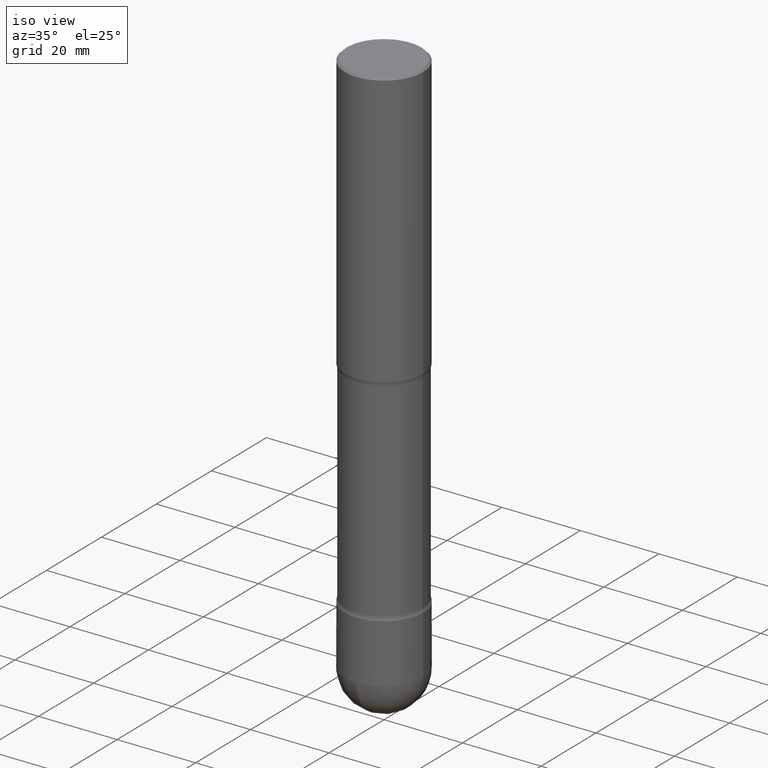
[diagram: clean part render]
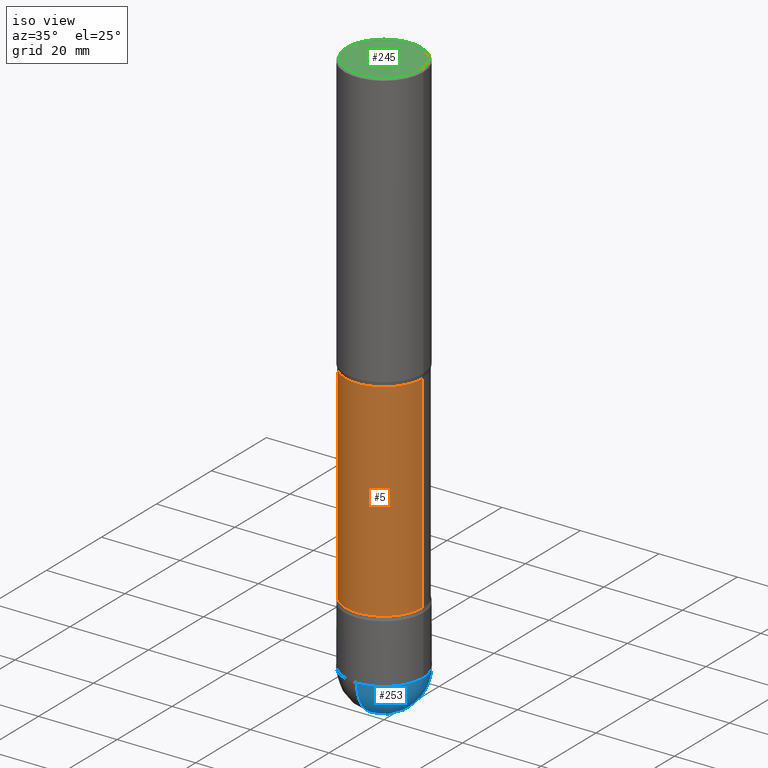
[diagram: same view with three faces highlighted in distinct colors, each labeled with its STEP entity id]
A machine part, iso view with three faces highlighted in distinct colors.
Their STEP definitions:

[orange] entity #5 — the highlighted cylindrical surface (partial cylindrical patch) has radius 9.8095 mm, axis along (0, -0, -1).
#5 = ADVANCED_FACE ( 'NONE', ( #476 ), #163, .T. ) ;
#28 = DIRECTION ( 'NONE',  ( 2.445468806185136597E-29, -3.491481338843145583E-15, -1.000000000000000000 ) ) ;
#40 = CARTESIAN_POINT ( 'NONE',  ( 0.3861999999999992661, -1.237187487833494687E-14, -2.798546805273079308 ) ) ;
#41 = VERTEX_POINT ( 'NONE', #352 ) ;
#67 = EDGE_CURVE ( 'NONE', #510, #41, #311, .T. ) ;
#91 = CARTESIAN_POINT ( 'NONE',  ( -0.3861999999999994326, -1.448545777859245492E-14, -4.921199999999999797 ) ) ;
#114 = CARTESIAN_POINT ( 'NONE',  ( 6.843758914944385400E-29, -9.771073946490059360E-15, -2.798546805273079308 ) ) ;
#120 = AXIS2_PLACEMENT_3D ( 'NONE', #382, #469, #509 ) ;
#122 = CIRCLE ( 'NONE', #191, 0.3861999999999995437 ) ;
#143 = CARTESIAN_POINT ( 'NONE',  ( 1.193034965701952550E-28, -1.703337743994265175E-14, -4.878553194726920061 ) ) ;
#150 = VECTOR ( 'NONE', #361, 39.37007874015748143 ) ;
#163 = CYLINDRICAL_SURFACE ( 'NONE', #120, 0.3861999999999994326 ) ;
#184 = VERTEX_POINT ( 'NONE', #416 ) ;
#187 = ORIENTED_EDGE ( 'NONE', *, *, #195, .T. ) ;
#191 = AXIS2_PLACEMENT_3D ( 'NONE', #143, #224, #450 ) ;
#195 = EDGE_CURVE ( 'NONE', #480, #510, #338, .T. ) ;
#202 = ORIENTED_EDGE ( 'NONE', *, *, #67, .T. ) ;
#223 = DIRECTION ( 'NONE',  ( 2.445468806185136877E-29, -3.491481338843145188E-15, -1.000000000000000000 ) ) ;
#224 = DIRECTION ( 'NONE',  ( 2.445468806185136597E-29, -3.491481338843145583E-15, -1.000000000000000000 ) ) ;
#256 = EDGE_LOOP ( 'NONE', ( #502, #187, #202, #549 ) ) ;
#311 = LINE ( 'NONE', #91, #410 ) ;
#317 = CARTESIAN_POINT ( 'NONE',  ( -0.3861999999999992661, -7.074253760367627561E-15, -2.798546805273079308 ) ) ;
#338 = CIRCLE ( 'NONE', #551, 0.3861999999999992661 ) ;
#352 = CARTESIAN_POINT ( 'NONE',  ( -0.3861999999999995437, -1.433655725382021838E-14, -4.878553194726920061 ) ) ;
#361 = DIRECTION ( 'NONE',  ( 2.445468806185136877E-29, -3.491481338843145188E-15, -1.000000000000000000 ) ) ;
#382 = CARTESIAN_POINT ( 'NONE',  ( 1.203464108899829379E-28, -1.718227796471488830E-14, -4.921199999999999797 ) ) ;
#410 = VECTOR ( 'NONE', #223, 39.37007874015748143 ) ;
#416 = CARTESIAN_POINT ( 'NONE',  ( 0.3861999999999995992, -1.605175001995571863E-14, -4.878553194726920061 ) ) ;
#434 = DIRECTION ( 'NONE',  ( -1.000000000000000000, 6.982962677686266711E-15, 0.000000000000000000 ) ) ;
#442 = EDGE_CURVE ( 'NONE', #184, #41, #122, .T. ) ;
#446 = CARTESIAN_POINT ( 'NONE',  ( 0.3861999999999994326, -1.983180229145424743E-14, -4.921199999999999797 ) ) ;
#450 = DIRECTION ( 'NONE',  ( -1.000000000000000000, 6.982962677686269866E-15, 0.000000000000000000 ) ) ;
#469 = DIRECTION ( 'NONE',  ( 2.445468806185136597E-29, -3.491481338843145583E-15, -1.000000000000000000 ) ) ;
#476 = FACE_OUTER_BOUND ( 'NONE', #256, .T. ) ;
#480 = VERTEX_POINT ( 'NONE', #40 ) ;
#493 = LINE ( 'NONE', #446, #150 ) ;
#502 = ORIENTED_EDGE ( 'NONE', *, *, #540, .F. ) ;
#509 = DIRECTION ( 'NONE',  ( -1.000000000000000000, 6.982962677686266711E-15, 0.000000000000000000 ) ) ;
#510 = VERTEX_POINT ( 'NONE', #317 ) ;
#540 = EDGE_CURVE ( 'NONE', #480, #184, #493, .T. ) ;
#549 = ORIENTED_EDGE ( 'NONE', *, *, #442, .F. ) ;
#551 = AXIS2_PLACEMENT_3D ( 'NONE', #114, #28, #434 ) ;

[blue] entity #253 — the highlighted spherical surface has radius 10 mm.
#6 = CARTESIAN_POINT ( 'NONE',  ( 1.344526706912624446E-28, -1.929256118791808272E-14, -5.511800000000000033 ) ) ;
#13 = FACE_OUTER_BOUND ( 'NONE', #243, .T. ) ;
#35 = VERTEX_POINT ( 'NONE', #94 ) ;
#63 = DIRECTION ( 'NONE',  ( -1.000000000000000000, 6.982962677686265133E-15, -4.883557194083111780E-29 ) ) ;
#65 = DIRECTION ( 'NONE',  ( 1.000000000000000000, -6.982962677686266711E-15, 0.000000000000000000 ) ) ;
#66 = CIRCLE ( 'NONE', #149, 0.3936999999999993838 ) ;
#72 = ORIENTED_EDGE ( 'NONE', *, *, #81, .F. ) ;
#74 = DIRECTION ( 'NONE',  ( 6.982962677686265133E-15, 1.000000000000000000, -2.775563112689121034E-15 ) ) ;
#81 = EDGE_CURVE ( 'NONE', #426, #35, #66, .T. ) ;
#94 = CARTESIAN_POINT ( 'NONE',  ( -2.797406750687373580E-15, -0.3937000000000184796, -5.511799999999999145 ) ) ;
#146 = CARTESIAN_POINT ( 'NONE',  ( 0.3936999999999989952, -2.096250481028034702E-14, -5.511800000000000033 ) ) ;
#149 = AXIS2_PLACEMENT_3D ( 'NONE', #6, #176, #178 ) ;
#161 = ORIENTED_EDGE ( 'NONE', *, *, #302, .F. ) ;
#176 = DIRECTION ( 'NONE',  ( -1.000000000000000000, 7.105427357601001070E-15, -4.926315508542082329E-29 ) ) ;
#178 = DIRECTION ( 'NONE',  ( -7.105427357601001070E-15, -1.000000000000000000, 0.000000000000000000 ) ) ;
#211 = CIRCLE ( 'NONE', #462, 0.3936999999999989952 ) ;
#212 = DIRECTION ( 'NONE',  ( -2.445468806185136597E-29, 3.491481338843145583E-15, 1.000000000000000000 ) ) ;
#213 = CARTESIAN_POINT ( 'NONE',  ( 1.347893496593123646E-28, -1.924434684343564878E-14, -5.511800000000000033 ) ) ;
#220 = EDGE_CURVE ( 'NONE', #499, #251, #211, .T. ) ;
#232 = CARTESIAN_POINT ( 'NONE',  ( 1.344526706912624446E-28, -1.929256118791808272E-14, -5.511800000000000033 ) ) ;
#243 = EDGE_LOOP ( 'NONE', ( #72, #342, #248, #161 ) ) ;
#248 = ORIENTED_EDGE ( 'NONE', *, *, #220, .F. ) ;
#251 = VERTEX_POINT ( 'NONE', #276 ) ;
#252 = CARTESIAN_POINT ( 'NONE',  ( 1.442488208652382782E-28, -2.064305021877940893E-14, -5.905499999999999972 ) ) ;
#253 = ADVANCED_FACE ( 'NONE', ( #13 ), #364, .T. ) ;
#260 = DIRECTION ( 'NONE',  ( 1.000000000000000000, -6.982962677686266711E-15, 0.000000000000000000 ) ) ;
#276 = CARTESIAN_POINT ( 'NONE',  ( 2.749192406205212195E-15, 0.3936999999999799549, -5.511800000000000921 ) ) ;
#278 = CIRCLE ( 'NONE', #546, 0.3936999999999989952 ) ;
#293 = AXIS2_PLACEMENT_3D ( 'NONE', #521, #557, #441 ) ;
#296 = EDGE_CURVE ( 'NONE', #426, #251, #503, .T. ) ;
#302 = EDGE_CURVE ( 'NONE', #35, #499, #278, .T. ) ;
#326 = DIRECTION ( 'NONE',  ( -2.445468806185136597E-29, 3.491481338843145583E-15, 1.000000000000000000 ) ) ;
#342 = ORIENTED_EDGE ( 'NONE', *, *, #296, .T. ) ;
#364 = SPHERICAL_SURFACE ( 'NONE', #530, 0.3936999999999993838 ) ;
#426 = VERTEX_POINT ( 'NONE', #252 ) ;
#441 = DIRECTION ( 'NONE',  ( 6.982962677686265922E-15, 1.000000000000000000, 0.000000000000000000 ) ) ;
#462 = AXIS2_PLACEMENT_3D ( 'NONE', #213, #326, #65 ) ;
#482 = CARTESIAN_POINT ( 'NONE',  ( 1.347893496593123646E-28, -1.924434684343564878E-14, -5.511800000000000033 ) ) ;
#499 = VERTEX_POINT ( 'NONE', #146 ) ;
#503 = CIRCLE ( 'NONE', #293, 0.3936999999999993838 ) ;
#521 = CARTESIAN_POINT ( 'NONE',  ( 1.344526706912624446E-28, -1.929256118791808272E-14, -5.511800000000000033 ) ) ;
#530 = AXIS2_PLACEMENT_3D ( 'NONE', #232, #63, #74 ) ;
#546 = AXIS2_PLACEMENT_3D ( 'NONE', #482, #212, #260 ) ;
#557 = DIRECTION ( 'NONE',  ( 1.000000000000000000, -6.982962677686265922E-15, 4.883557194083112340E-29 ) ) ;

[green] entity #245 — the highlighted planar face has unit normal (-0, 0, 1).
#8 = AXIS2_PLACEMENT_3D ( 'NONE', #225, #58, #179 ) ;
#11 = CARTESIAN_POINT ( 'NONE',  ( 0.3736999999999996991, -2.667287895133366781E-15, 1.845150283989421456E-29 ) ) ;
#58 = DIRECTION ( 'NONE',  ( 2.445468806185136597E-29, -3.491481338843145583E-15, -1.000000000000000000 ) ) ;
#70 = CARTESIAN_POINT ( 'NONE',  ( 2.609533152651355437E-15, 0.3736999999999996991, -1.300498063835582025E-15 ) ) ;
#84 = DIRECTION ( 'NONE',  ( -1.000000000000000000, 6.982962677686266711E-15, -4.876176775795935793E-29 ) ) ;
#179 = DIRECTION ( 'NONE',  ( -1.000000000000000000, 6.982962677686266711E-15, -4.876176775795935793E-29 ) ) ;
#196 = DIRECTION ( 'NONE',  ( 1.000000000000000000, -6.982962677686265922E-15, 4.876176775795935793E-29 ) ) ;
#201 = ORIENTED_EDGE ( 'NONE', *, *, #323, .F. ) ;
#203 = AXIS2_PLACEMENT_3D ( 'NONE', #70, #419, #196 ) ;
#225 = CARTESIAN_POINT ( 'NONE',  ( 0.000000000000000000, 0.000000000000000000, 0.000000000000000000 ) ) ;
#245 = ADVANCED_FACE ( 'NONE', ( #247 ), #376, .T. ) ;
#247 = FACE_OUTER_BOUND ( 'NONE', #448, .T. ) ;
#258 = CIRCLE ( 'NONE', #8, 0.3736999999999996991 ) ;
#298 = VERTEX_POINT ( 'NONE', #307 ) ;
#307 = CARTESIAN_POINT ( 'NONE',  ( -0.3736999999999996991, 2.609533152651355831E-15, -1.822227261114939718E-29 ) ) ;
#323 = EDGE_CURVE ( 'NONE', #298, #467, #258, .T. ) ;
#339 = CIRCLE ( 'NONE', #403, 0.3736999999999996991 ) ;
#349 = DIRECTION ( 'NONE',  ( 2.445468806185136597E-29, -3.491481338843145583E-15, -1.000000000000000000 ) ) ;
#376 = PLANE ( 'NONE',  #203 ) ;
#396 = CARTESIAN_POINT ( 'NONE',  ( 0.000000000000000000, 0.000000000000000000, 0.000000000000000000 ) ) ;
#403 = AXIS2_PLACEMENT_3D ( 'NONE', #396, #349, #84 ) ;
#419 = DIRECTION ( 'NONE',  ( -2.438088387897960049E-29, 3.491481338843145188E-15, 1.000000000000000000 ) ) ;
#431 = ORIENTED_EDGE ( 'NONE', *, *, #468, .F. ) ;
#448 = EDGE_LOOP ( 'NONE', ( #201, #431 ) ) ;
#467 = VERTEX_POINT ( 'NONE', #11 ) ;
#468 = EDGE_CURVE ( 'NONE', #467, #298, #339, .T. ) ;